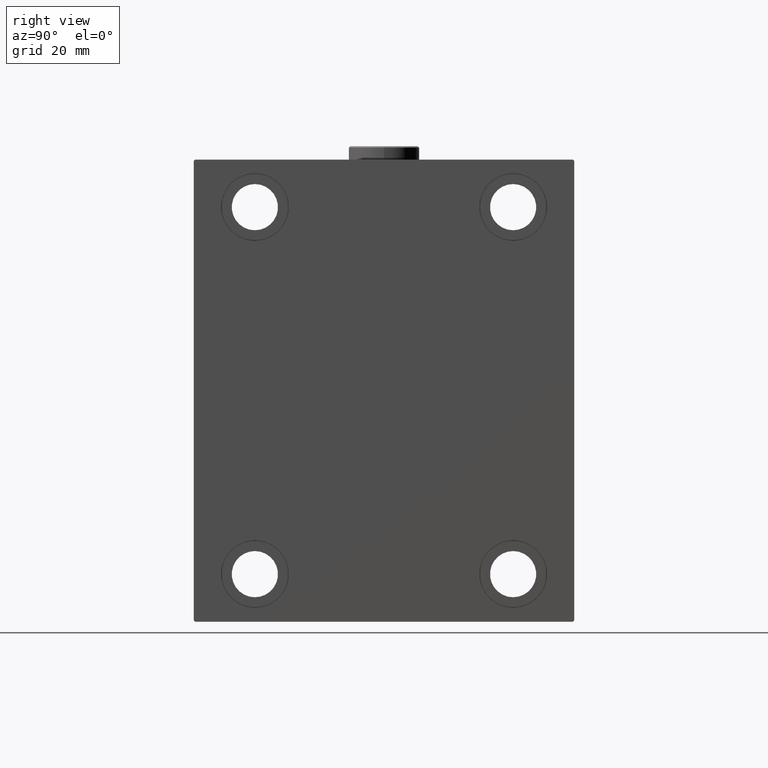
[diagram: clean part render]
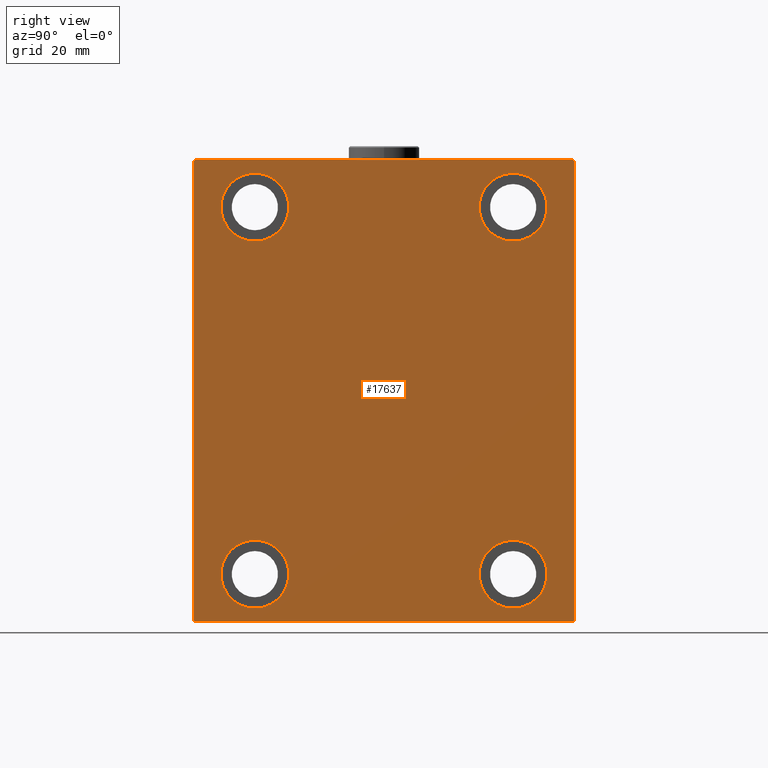
[diagram: same view with one face highlighted and labeled with its STEP entity id]
A machine part, right view. The second image highlights one B-rep face of the part: STEP entity #17637.
In plain terms, the highlighted planar face has unit normal (1, 0, 0).
Its self-contained STEP definition (entity closure, byte-faithful):
#620 = AXIS2_PLACEMENT_3D ( 'NONE', #6204, #7728, #27213 ) ;
#842 = VECTOR ( 'NONE', #10797, 1000.000000000000000 ) ;
#1011 = LINE ( 'NONE', #4188, #31976 ) ;
#1031 = CARTESIAN_POINT ( 'NONE',  ( 135.0000000000000000, 70.00000000000002842, -84.50000000000004263 ) ) ;
#1369 = ORIENTED_EDGE ( 'NONE', *, *, #18643, .T. ) ;
#1437 = CARTESIAN_POINT ( 'NONE',  ( 135.0000000000000000, -69.99999999999998579, 84.99999999999998579 ) ) ;
#2046 = CARTESIAN_POINT ( 'NONE',  ( 135.0000000000000000, 70.00000000000001421, 84.50000000000007105 ) ) ;
#2173 = ORIENTED_EDGE ( 'NONE', *, *, #23631, .T. ) ;
#2236 = VERTEX_POINT ( 'NONE', #42250 ) ;
#2245 = VECTOR ( 'NONE', #12344, 999.9999999999998863 ) ;
#2568 = EDGE_CURVE ( 'NONE', #2236, #7981, #4074, .T. ) ;
#2784 = AXIS2_PLACEMENT_3D ( 'NONE', #4808, #18948, #40171 ) ;
#2862 = CIRCLE ( 'NONE', #10876, 12.50000000000001066 ) ;
#3160 = ORIENTED_EDGE ( 'NONE', *, *, #41779, .T. ) ;
#3198 = EDGE_CURVE ( 'NONE', #24043, #43371, #44792, .T. ) ;
#3562 = DIRECTION ( 'NONE',  ( 0.000000000000000000, 0.000000000000000000, -1.000000000000000000 ) ) ;
#4074 = LINE ( 'NONE', #28496, #38551 ) ;
#4188 = CARTESIAN_POINT ( 'NONE',  ( 135.0000000000000000, 70.00000000000001421, 85.00000000000000000 ) ) ;
#4808 = CARTESIAN_POINT ( 'NONE',  ( 135.0000000000000000, 47.50000000000000711, 67.50000000000000000 ) ) ;
#5063 = VERTEX_POINT ( 'NONE', #20027 ) ;
#5081 = FACE_BOUND ( 'NONE', #29841, .T. ) ;
#5681 = EDGE_CURVE ( 'NONE', #14072, #37647, #2862, .T. ) ;
#5977 = AXIS2_PLACEMENT_3D ( 'NONE', #25639, #18994, #3562 ) ;
#5995 = VERTEX_POINT ( 'NONE', #27327 ) ;
#6204 = CARTESIAN_POINT ( 'NONE',  ( 135.0000000000000000, 47.50000000000000711, 67.50000000000000000 ) ) ;
#6520 = EDGE_CURVE ( 'NONE', #5995, #5063, #36317, .T. ) ;
#7249 = EDGE_CURVE ( 'NONE', #43371, #2236, #1011, .T. ) ;
#7452 = AXIS2_PLACEMENT_3D ( 'NONE', #34776, #24294, #17876 ) ;
#7619 = DIRECTION ( 'NONE',  ( 0.000000000000000000, -1.000000000000000000, -9.912705577010325549E-17 ) ) ;
#7630 = VERTEX_POINT ( 'NONE', #14633 ) ;
#7728 = DIRECTION ( 'NONE',  ( -1.000000000000000000, -0.000000000000000000, -0.000000000000000000 ) ) ;
#7981 = VERTEX_POINT ( 'NONE', #18684 ) ;
#8414 = DIRECTION ( 'NONE',  ( 0.000000000000000000, 0.000000000000000000, 1.000000000000000000 ) ) ;
#8978 = CARTESIAN_POINT ( 'NONE',  ( 135.0000000000000000, -47.49999999999997868, 67.50000000000000000 ) ) ;
#9424 = DIRECTION ( 'NONE',  ( 0.000000000000000000, 0.000000000000000000, 1.000000000000000000 ) ) ;
#9624 = AXIS2_PLACEMENT_3D ( 'NONE', #10057, #23985, #20550 ) ;
#9989 = VERTEX_POINT ( 'NONE', #35822 ) ;
#10057 = CARTESIAN_POINT ( 'NONE',  ( 135.0000000000000000, -47.49999999999999289, -67.50000000000000000 ) ) ;
#10159 = ORIENTED_EDGE ( 'NONE', *, *, #3198, .T. ) ;
#10309 = EDGE_LOOP ( 'NONE', ( #29599, #33790, #2173, #37167, #34854, #27802, #3160, #10159 ) ) ;
#10359 = ORIENTED_EDGE ( 'NONE', *, *, #19303, .T. ) ;
#10540 = ORIENTED_EDGE ( 'NONE', *, *, #28275, .T. ) ;
#10797 = DIRECTION ( 'NONE',  ( 0.000000000000000000, -8.163404592832031500E-17, 1.000000000000000000 ) ) ;
#10876 = AXIS2_PLACEMENT_3D ( 'NONE', #8978, #27011, #9424 ) ;
#11473 = FACE_BOUND ( 'NONE', #41153, .T. ) ;
#11924 = DIRECTION ( 'NONE',  ( 0.000000000000000000, 0.000000000000000000, -1.000000000000000000 ) ) ;
#12237 = DIRECTION ( 'NONE',  ( -1.000000000000000000, -0.000000000000000000, -0.000000000000000000 ) ) ;
#12344 = DIRECTION ( 'NONE',  ( -0.000000000000000000, 0.7071067811865376918, 0.7071067811865574537 ) ) ;
#13005 = VERTEX_POINT ( 'NONE', #37830 ) ;
#13388 = EDGE_CURVE ( 'NONE', #36811, #21831, #33108, .T. ) ;
#14062 = AXIS2_PLACEMENT_3D ( 'NONE', #22738, #12237, #16118 ) ;
#14072 = VERTEX_POINT ( 'NONE', #31598 ) ;
#14095 = VECTOR ( 'NONE', #21716, 1000.000000000000000 ) ;
#14633 = CARTESIAN_POINT ( 'NONE',  ( 135.0000000000000000, -69.49999999999998579, -85.00000000000002842 ) ) ;
#14635 = EDGE_LOOP ( 'NONE', ( #24354, #10540 ) ) ;
#16118 = DIRECTION ( 'NONE',  ( 0.000000000000000000, 0.000000000000000000, 1.000000000000000000 ) ) ;
#16177 = CIRCLE ( 'NONE', #9624, 12.49999999999999645 ) ;
#16373 = EDGE_CURVE ( 'NONE', #13005, #7630, #43246, .T. ) ;
#16935 = EDGE_CURVE ( 'NONE', #37322, #17263, #16177, .T. ) ;
#17128 = CARTESIAN_POINT ( 'NONE',  ( 135.0000000000000000, -47.49999999999999289, -67.50000000000000000 ) ) ;
#17263 = VERTEX_POINT ( 'NONE', #29388 ) ;
#17637 = ADVANCED_FACE ( 'NONE', ( #5081, #21971, #11473, #39549, #28819 ), #25180, .T. ) ;
#17876 = DIRECTION ( 'NONE',  ( 0.000000000000000000, 0.000000000000000000, 1.000000000000000000 ) ) ;
#18643 = EDGE_CURVE ( 'NONE', #9989, #25597, #22759, .T. ) ;
#18684 = CARTESIAN_POINT ( 'NONE',  ( 135.0000000000000000, -69.99999999999998579, 84.50000000000001421 ) ) ;
#18948 = DIRECTION ( 'NONE',  ( -1.000000000000000000, -0.000000000000000000, -0.000000000000000000 ) ) ;
#18994 = DIRECTION ( 'NONE',  ( 1.000000000000000000, 0.000000000000000000, 0.000000000000000000 ) ) ;
#19165 = CARTESIAN_POINT ( 'NONE',  ( 135.0000000000000000, -47.49999999999997868, 55.00000000000000000 ) ) ;
#19303 = EDGE_CURVE ( 'NONE', #25597, #9989, #41012, .T. ) ;
#20027 = CARTESIAN_POINT ( 'NONE',  ( 135.0000000000000000, 47.50000000000000711, 55.00000000000000000 ) ) ;
#20213 = EDGE_CURVE ( 'NONE', #37647, #14072, #22789, .T. ) ;
#20391 = LINE ( 'NONE', #41632, #842 ) ;
#20550 = DIRECTION ( 'NONE',  ( 0.000000000000000000, 0.000000000000000000, 1.000000000000000000 ) ) ;
#20589 = ORIENTED_EDGE ( 'NONE', *, *, #37739, .T. ) ;
#20682 = EDGE_CURVE ( 'NONE', #7630, #36811, #28577, .T. ) ;
#21438 = AXIS2_PLACEMENT_3D ( 'NONE', #17128, #27637, #24887 ) ;
#21556 = CARTESIAN_POINT ( 'NONE',  ( 135.0000000000000000, 69.50000000000007105, 85.00000000000000000 ) ) ;
#21716 = DIRECTION ( 'NONE',  ( 0.000000000000000000, 1.000000000000000000, 9.912705577010325549E-17 ) ) ;
#21783 = CARTESIAN_POINT ( 'NONE',  ( 135.0000000000000000, -77.24999999999907629, -77.25000000000120792 ) ) ;
#21831 = VERTEX_POINT ( 'NONE', #1031 ) ;
#21971 = FACE_BOUND ( 'NONE', #28336, .T. ) ;
#22738 = CARTESIAN_POINT ( 'NONE',  ( 135.0000000000000000, -47.49999999999997868, 67.50000000000000000 ) ) ;
#22759 = CIRCLE ( 'NONE', #7452, 12.49999999999999645 ) ;
#22789 = CIRCLE ( 'NONE', #14062, 12.50000000000001066 ) ;
#23286 = VECTOR ( 'NONE', #33601, 999.9999999999998863 ) ;
#23631 = EDGE_CURVE ( 'NONE', #7981, #13005, #29495, .T. ) ;
#23900 = CIRCLE ( 'NONE', #2784, 12.50000000000001066 ) ;
#23985 = DIRECTION ( 'NONE',  ( -1.000000000000000000, -0.000000000000000000, -0.000000000000000000 ) ) ;
#24043 = VERTEX_POINT ( 'NONE', #2046 ) ;
#24294 = DIRECTION ( 'NONE',  ( -1.000000000000000000, -0.000000000000000000, -0.000000000000000000 ) ) ;
#24354 = ORIENTED_EDGE ( 'NONE', *, *, #16935, .T. ) ;
#24887 = DIRECTION ( 'NONE',  ( 0.000000000000000000, 0.000000000000000000, 1.000000000000000000 ) ) ;
#25180 = PLANE ( 'NONE',  #5977 ) ;
#25597 = VERTEX_POINT ( 'NONE', #31203 ) ;
#25639 = CARTESIAN_POINT ( 'NONE',  ( 135.0000000000000000, 0.000000000000000000, 0.000000000000000000 ) ) ;
#26384 = ORIENTED_EDGE ( 'NONE', *, *, #20213, .T. ) ;
#26439 = CARTESIAN_POINT ( 'NONE',  ( 135.0000000000000000, 47.50000000000000711, -67.50000000000000000 ) ) ;
#26948 = CARTESIAN_POINT ( 'NONE',  ( 135.0000000000000000, 77.25000000000100897, -77.24999999999886313 ) ) ;
#27011 = DIRECTION ( 'NONE',  ( -1.000000000000000000, -0.000000000000000000, -0.000000000000000000 ) ) ;
#27143 = CARTESIAN_POINT ( 'NONE',  ( 135.0000000000000000, 69.50000000000007105, -85.00000000000001421 ) ) ;
#27213 = DIRECTION ( 'NONE',  ( 0.000000000000000000, 0.000000000000000000, 1.000000000000000000 ) ) ;
#27327 = CARTESIAN_POINT ( 'NONE',  ( 135.0000000000000000, 47.50000000000000711, 80.00000000000001421 ) ) ;
#27637 = DIRECTION ( 'NONE',  ( -1.000000000000000000, -0.000000000000000000, -0.000000000000000000 ) ) ;
#27773 = CARTESIAN_POINT ( 'NONE',  ( 135.0000000000000000, -47.49999999999999289, -80.00000000000000000 ) ) ;
#27802 = ORIENTED_EDGE ( 'NONE', *, *, #13388, .T. ) ;
#28275 = EDGE_CURVE ( 'NONE', #17263, #37322, #44069, .T. ) ;
#28336 = EDGE_LOOP ( 'NONE', ( #26384, #44520 ) ) ;
#28421 = DIRECTION ( 'NONE',  ( -0.000000000000000000, 0.7071067811865573427, -0.7071067811865378028 ) ) ;
#28496 = CARTESIAN_POINT ( 'NONE',  ( 135.0000000000000000, -77.25000000000001421, 77.25000000000001421 ) ) ;
#28577 = LINE ( 'NONE', #42500, #14095 ) ;
#28819 = FACE_OUTER_BOUND ( 'NONE', #10309, .T. ) ;
#29374 = AXIS2_PLACEMENT_3D ( 'NONE', #26439, #33496, #8414 ) ;
#29388 = CARTESIAN_POINT ( 'NONE',  ( 135.0000000000000000, -47.49999999999999289, -55.00000000000000711 ) ) ;
#29495 = LINE ( 'NONE', #1437, #30090 ) ;
#29599 = ORIENTED_EDGE ( 'NONE', *, *, #7249, .T. ) ;
#29841 = EDGE_LOOP ( 'NONE', ( #10359, #1369 ) ) ;
#30090 = VECTOR ( 'NONE', #11924, 1000.000000000000000 ) ;
#31203 = CARTESIAN_POINT ( 'NONE',  ( 135.0000000000000000, 47.50000000000000711, -80.00000000000000000 ) ) ;
#31598 = CARTESIAN_POINT ( 'NONE',  ( 135.0000000000000000, -47.49999999999997868, 80.00000000000001421 ) ) ;
#31976 = VECTOR ( 'NONE', #7619, 1000.000000000000000 ) ;
#33108 = LINE ( 'NONE', #26948, #2245 ) ;
#33496 = DIRECTION ( 'NONE',  ( -1.000000000000000000, -0.000000000000000000, -0.000000000000000000 ) ) ;
#33601 = DIRECTION ( 'NONE',  ( -0.000000000000000000, -0.7071067811865574537, 0.7071067811865376918 ) ) ;
#33790 = ORIENTED_EDGE ( 'NONE', *, *, #2568, .T. ) ;
#34776 = CARTESIAN_POINT ( 'NONE',  ( 135.0000000000000000, 47.50000000000000711, -67.50000000000000000 ) ) ;
#34854 = ORIENTED_EDGE ( 'NONE', *, *, #20682, .T. ) ;
#35822 = CARTESIAN_POINT ( 'NONE',  ( 135.0000000000000000, 47.50000000000000711, -55.00000000000000711 ) ) ;
#36317 = CIRCLE ( 'NONE', #620, 12.50000000000001066 ) ;
#36811 = VERTEX_POINT ( 'NONE', #27143 ) ;
#37167 = ORIENTED_EDGE ( 'NONE', *, *, #16373, .T. ) ;
#37322 = VERTEX_POINT ( 'NONE', #27773 ) ;
#37647 = VERTEX_POINT ( 'NONE', #19165 ) ;
#37739 = EDGE_CURVE ( 'NONE', #5063, #5995, #23900, .T. ) ;
#37830 = CARTESIAN_POINT ( 'NONE',  ( 135.0000000000000000, -69.99999999999998579, -84.50000000000004263 ) ) ;
#38501 = ORIENTED_EDGE ( 'NONE', *, *, #6520, .T. ) ;
#38551 = VECTOR ( 'NONE', #38995, 1000.000000000000114 ) ;
#38721 = VECTOR ( 'NONE', #28421, 1000.000000000000000 ) ;
#38995 = DIRECTION ( 'NONE',  ( 0.000000000000000000, -0.7071067811865474617, -0.7071067811865474617 ) ) ;
#39549 = FACE_BOUND ( 'NONE', #14635, .T. ) ;
#40171 = DIRECTION ( 'NONE',  ( 0.000000000000000000, 0.000000000000000000, 1.000000000000000000 ) ) ;
#41012 = CIRCLE ( 'NONE', #29374, 12.49999999999999645 ) ;
#41153 = EDGE_LOOP ( 'NONE', ( #20589, #38501 ) ) ;
#41358 = CARTESIAN_POINT ( 'NONE',  ( 135.0000000000000000, 77.24999999999907629, 77.25000000000122213 ) ) ;
#41632 = CARTESIAN_POINT ( 'NONE',  ( 135.0000000000000000, 70.00000000000002842, -85.00000000000001421 ) ) ;
#41779 = EDGE_CURVE ( 'NONE', #21831, #24043, #20391, .T. ) ;
#42250 = CARTESIAN_POINT ( 'NONE',  ( 135.0000000000000000, -69.50000000000001421, 84.99999999999998579 ) ) ;
#42500 = CARTESIAN_POINT ( 'NONE',  ( 135.0000000000000000, -69.99999999999998579, -85.00000000000002842 ) ) ;
#43246 = LINE ( 'NONE', #21783, #38721 ) ;
#43371 = VERTEX_POINT ( 'NONE', #21556 ) ;
#44069 = CIRCLE ( 'NONE', #21438, 12.49999999999999645 ) ;
#44520 = ORIENTED_EDGE ( 'NONE', *, *, #5681, .T. ) ;
#44792 = LINE ( 'NONE', #41358, #23286 ) ;